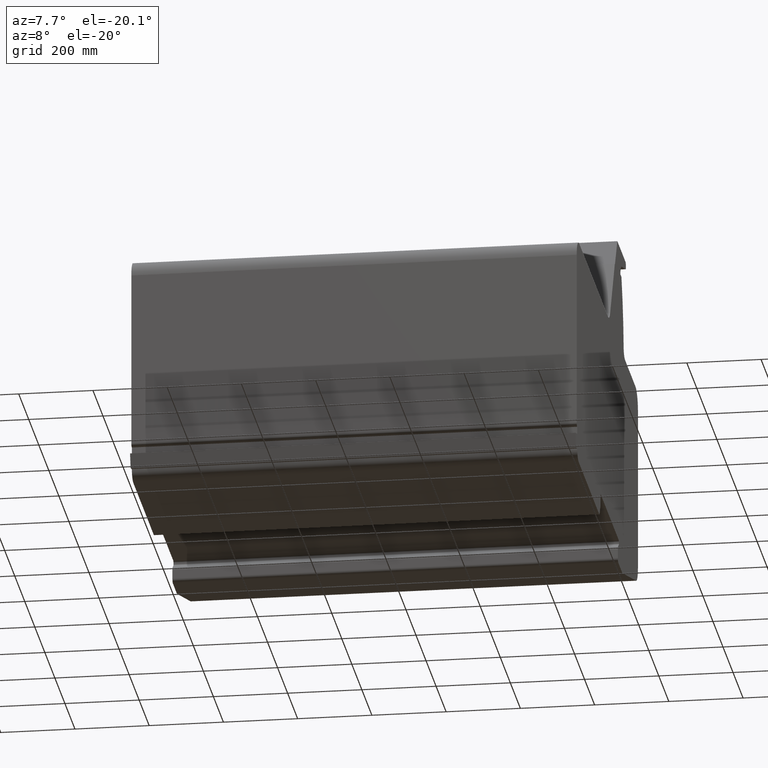
[diagram: clean part render]
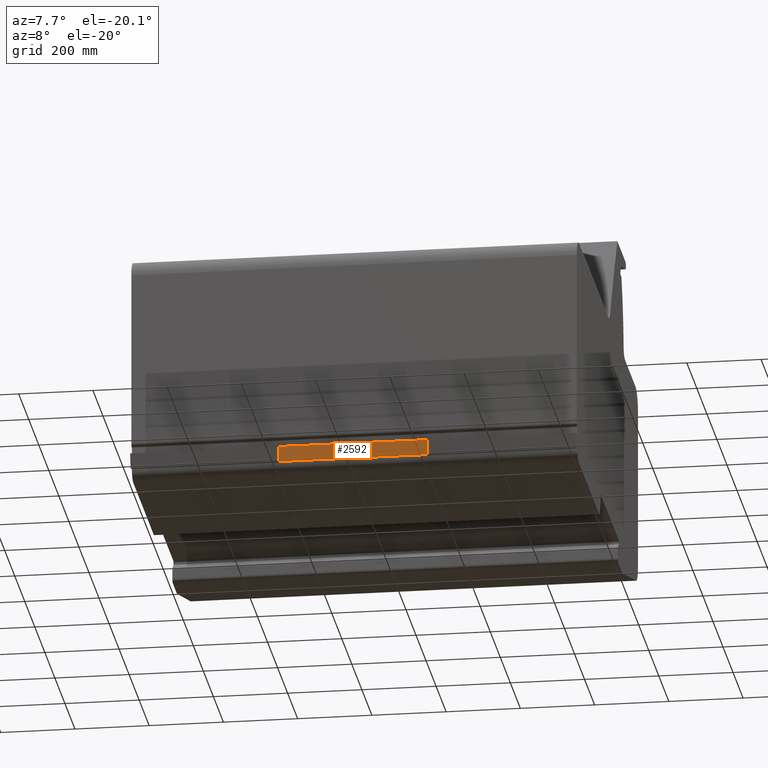
[diagram: same view with one face highlighted and labeled with its STEP entity id]
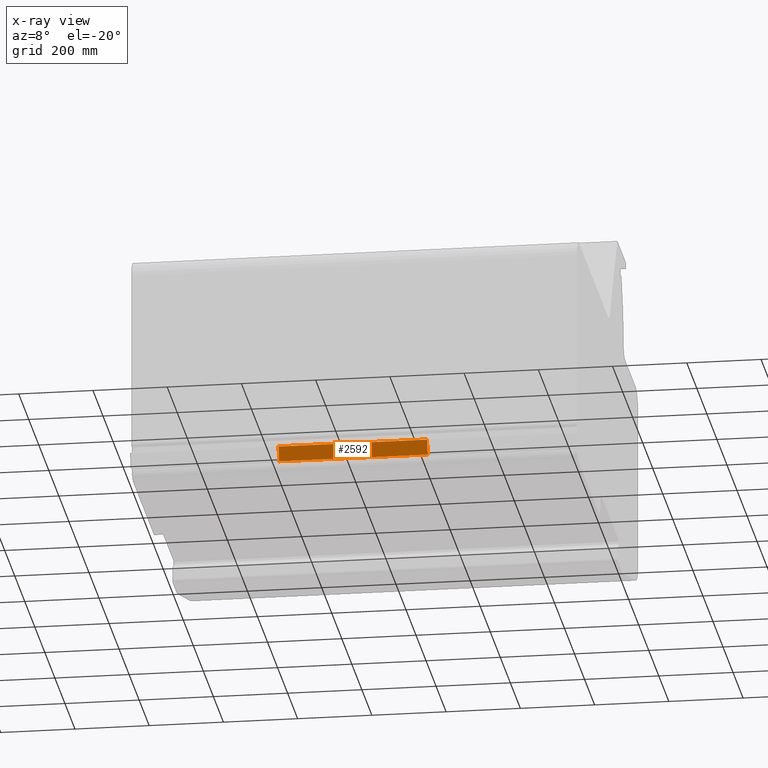
[diagram: x-ray of the same camera — body ghosted, the highlighted face saturated]
A machine part, auxiliary view. The second image highlights one B-rep face of the part: STEP entity #2592.
The next image is the same camera in x-ray: the body ghosted, the highlighted face saturated — about 0% of this face is hidden behind the body in this view.
In plain terms, the highlighted planar face has unit normal (0, -0.9635, -0.2676).
Its self-contained STEP definition (entity closure, byte-faithful):
#2536=CARTESIAN_POINT('',(800.0,-849.29424544898893,-46.040716385241502));
#2537=VERTEX_POINT('',#2536);
#2544=CARTESIAN_POINT('',(400.0,-849.29424544898893,-46.040716385241502));
#2545=VERTEX_POINT('',#2544);
#2546=CARTESIAN_POINT('',(400.0,-849.29424544898893,-46.040716385241502));
#2547=DIRECTION('',(1.0,0.0,0.0));
#2548=VECTOR('',#2547,400.0);
#2549=LINE('',#2546,#2548);
#2550=EDGE_CURVE('',#2545,#2537,#2549,.T.);
#2562=CARTESIAN_POINT('',(400.0,-849.29424544898893,-46.040716385241502));
#2563=DIRECTION('',(0.0,-0.963517909632647,-0.267643863776352));
#2564=DIRECTION('',(0.0,0.267643863776352,-0.963517909632647));
#2565=AXIS2_PLACEMENT_3D('',#2562,#2563,#2564);
#2566=PLANE('',#2565);
#2567=CARTESIAN_POINT('',(800.0,-860.00000000002331,-7.500000000006635));
#2568=VERTEX_POINT('',#2567);
#2569=CARTESIAN_POINT('',(800.0,-849.29424544898893,-46.040716385241502));
#2570=DIRECTION('',(0.0,-0.267643863776352,0.963517909632647));
#2571=VECTOR('',#2570,39.99999999992631);
#2572=LINE('',#2569,#2571);
#2573=EDGE_CURVE('',#2537,#2568,#2572,.T.);
#2574=ORIENTED_EDGE('',*,*,#2573,.T.);
#2575=CARTESIAN_POINT('',(400.0,-860.00000000002331,-7.500000000006635));
#2576=VERTEX_POINT('',#2575);
#2577=CARTESIAN_POINT('',(400.0,-860.00000000002331,-7.500000000006635));
#2578=DIRECTION('',(1.0,0.0,0.0));
#2579=VECTOR('',#2578,400.0);
#2580=LINE('',#2577,#2579);
#2581=EDGE_CURVE('',#2576,#2568,#2580,.T.);
#2582=ORIENTED_EDGE('',*,*,#2581,.F.);
#2583=CARTESIAN_POINT('',(400.0,-860.00000000002331,-7.500000000006635));
#2584=DIRECTION('',(0.0,0.267643863776352,-0.963517909632647));
#2585=VECTOR('',#2584,39.99999999992631);
#2586=LINE('',#2583,#2585);
#2587=EDGE_CURVE('',#2576,#2545,#2586,.T.);
#2588=ORIENTED_EDGE('',*,*,#2587,.T.);
#2589=ORIENTED_EDGE('',*,*,#2550,.T.);
#2590=EDGE_LOOP('',(#2574,#2582,#2588,#2589));
#2591=FACE_OUTER_BOUND('',#2590,.T.);
#2592=ADVANCED_FACE('',(#2591),#2566,.T.);